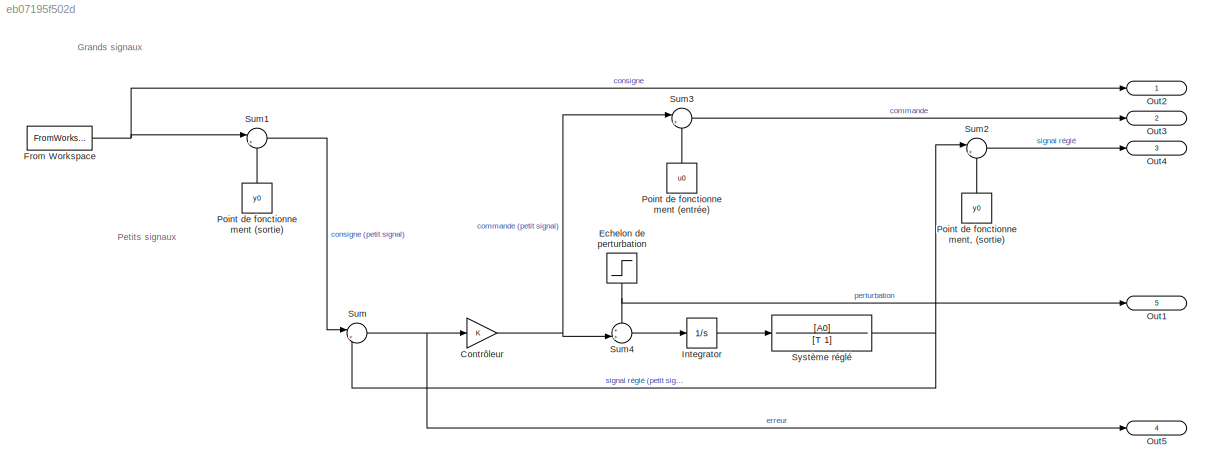
MODEL slx_eb07195f502d
KIND model
CONFIG AbsTol = auto
CONFIG EnableMultiTasking = off
CONFIG FixedStep = auto
CONFIG MaxStep = auto
CONFIG MinStep = auto
CONFIG RelTol = 1e-3
CONFIG SampleTimeConstraint = Unconstrained
CONFIG SolverName = VariableStepAuto
CONFIG StartTime = 0.0
CONFIG StopTime = 10.0
BLOCK [Gain] Contrôleur
  Gain = K
BLOCK [Step] Echelon de perturbation
  After = perturbation_step_amplitude
  NameLocation = right
  SampleTime = 0
BLOCK [FromWorkspace] From Workspace
  VariableName = input
BLOCK [Integrator] Integrator
BLOCK [Outport] Out1
  IconDisplay = Signal name
  Port = 5
BLOCK [Outport] Out2
  IconDisplay = Signal name
BLOCK [Outport] Out3
  IconDisplay = Signal name
  Port = 2
BLOCK [Outport] Out4
  IconDisplay = Signal name
  Port = 3
BLOCK [Outport] Out5
  IconDisplay = Signal name
  Port = 4
BLOCK [Constant] Point de fonctionnement (entrée)
  Value = u0
BLOCK [Constant] Point de fonctionnement (sortie)
  Value = y0
BLOCK [Constant] Point de fonctionnement, (sortie)
  NameLocation = right
  Value = y0
BLOCK [Sum] Sum
  Inputs = |+-
BLOCK [Sum] Sum1
  Inputs = |+-
BLOCK [Sum] Sum2
  Inputs = |++
BLOCK [Sum] Sum3
  Inputs = |++
  NameLocation = top
BLOCK [Sum] Sum4
  Inputs = ++|
  NameLocation = top
BLOCK [TransferFcn] Système réglé
  Denominator = [T 1]
  Numerator = [A0]
ANNOTATION (root): Grands signaux
ANNOTATION (root): Petits signaux
NET Contrôleur:1 -> Sum3:1, Sum4:2
NET Echelon de perturbation:1 -> Out1:1, Sum4:1
NET From Workspace:1 -> Out2:1, Sum1:1
LINE Integrator:1 -> Système réglé:1
LINE Point de fonctionnement (entrée):1 -> Sum3:2
LINE Point de fonctionnement (sortie):1 -> Sum1:2
LINE Point de fonctionnement, (sortie):1 -> Sum2:2
LINE Sum1:1 -> Sum:1
LINE Sum2:1 -> Out4:1
LINE Sum3:1 -> Out3:1
LINE Sum4:1 -> Integrator:1
NET Sum:1 -> Contrôleur:1, Out5:1
NET Système réglé:1 -> Sum2:1, Sum:2
note: NET lines group one-source signal fan-out (src -> all destinations, sorted); 1:1 wires keep LINE
